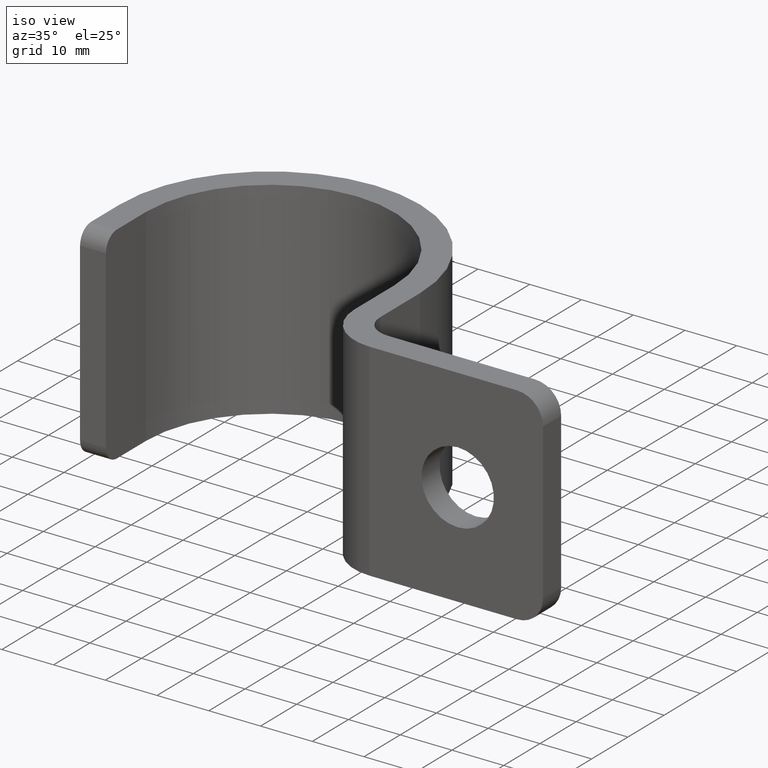
[diagram: clean part render]
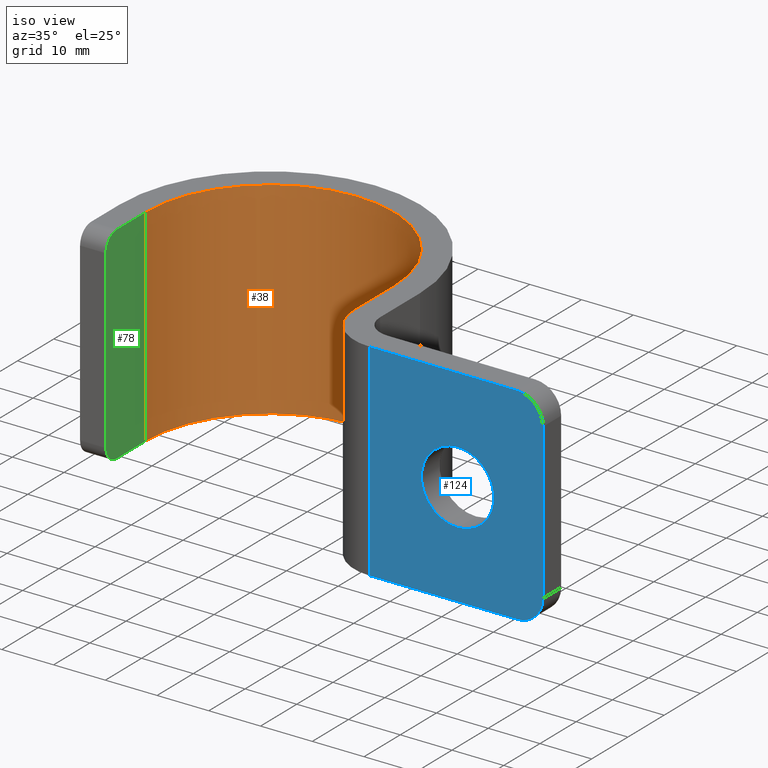
[diagram: same view with three faces highlighted in distinct colors, each labeled with its STEP entity id]
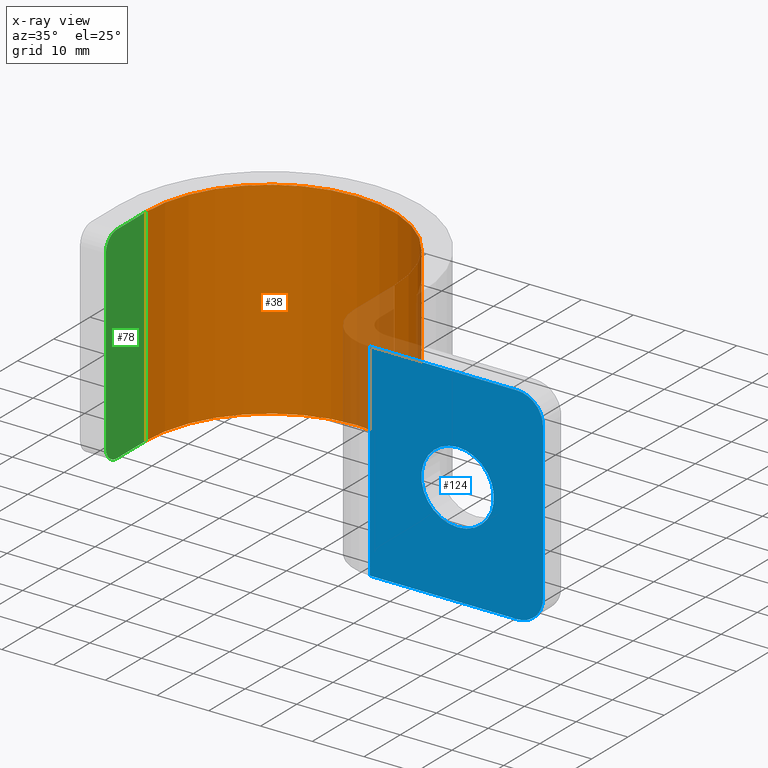
[diagram: x-ray of the same camera — body ghosted, the three highlighted faces saturated]
A machine part, iso view with three faces highlighted in distinct colors.
The next image is the same camera in x-ray (body ghosted, the three faces saturated) — at least one of them is partly hidden behind the body in this view.
Their STEP definitions:

[orange] entity #38 — the highlighted cylindrical surface (partial cylindrical patch) has radius 24 mm, axis along (0, -0, -1).
#5 = CARTESIAN_POINT ( 'NONE',  ( 4.440892098500626162E-13, 24.00000000000046541, -20.00000000000046185 ) ) ;
#29 = VERTEX_POINT ( 'NONE', #572 ) ;
#34 = VERTEX_POINT ( 'NONE', #757 ) ;
#38 = ADVANCED_FACE ( 'NONE', ( #682 ), #302, .F. ) ;
#39 = ORIENTED_EDGE ( 'NONE', *, *, #102, .F. ) ;
#60 = LINE ( 'NONE', #580, #457 ) ;
#102 = EDGE_CURVE ( 'NONE', #488, #34, #813, .T. ) ;
#105 = VECTOR ( 'NONE', #370, 1000.000000000000000 ) ;
#110 = CARTESIAN_POINT ( 'NONE',  ( 24.00000000000046541, 24.00000000000024158, 19.99999999999912959 ) ) ;
#238 = EDGE_LOOP ( 'NONE', ( #570, #39, #815, #398 ) ) ;
#255 = AXIS2_PLACEMENT_3D ( 'NONE', #389, #312, #648 ) ;
#302 = CYLINDRICAL_SURFACE ( 'NONE', #498, 24.00000000000002132 ) ;
#312 = DIRECTION ( 'NONE',  ( 8.326672684688671588E-17, -1.942890293094023453E-16, -1.000000000000000000 ) ) ;
#324 = DIRECTION ( 'NONE',  ( 8.326672684688671588E-17, -1.942890293094023453E-16, -1.000000000000000000 ) ) ;
#370 = DIRECTION ( 'NONE',  ( 8.326672684688671588E-17, -1.942890293094023453E-16, -1.000000000000000000 ) ) ;
#382 = CARTESIAN_POINT ( 'NONE',  ( -23.99999999999957723, 23.99999999999980105, 19.99999999999957367 ) ) ;
#389 = CARTESIAN_POINT ( 'NONE',  ( 4.440892098500626162E-13, 23.99999999999980105, 19.99999999999957367 ) ) ;
#398 = ORIENTED_EDGE ( 'NONE', *, *, #653, .T. ) ;
#412 = AXIS2_PLACEMENT_3D ( 'NONE', #5, #782, #716 ) ;
#457 = VECTOR ( 'NONE', #324, 1000.000000000000000 ) ;
#488 = VERTEX_POINT ( 'NONE', #824 ) ;
#498 = AXIS2_PLACEMENT_3D ( 'NONE', #631, #505, #830 ) ;
#505 = DIRECTION ( 'NONE',  ( 8.326672684688671588E-17, -1.942890293094023453E-16, -1.000000000000000000 ) ) ;
#516 = CIRCLE ( 'NONE', #255, 24.00000000000002132 ) ;
#570 = ORIENTED_EDGE ( 'NONE', *, *, #841, .T. ) ;
#572 = CARTESIAN_POINT ( 'NONE',  ( -23.99999999999957723, 23.99999999999980105, -20.00000000000090594 ) ) ;
#580 = CARTESIAN_POINT ( 'NONE',  ( -23.99999999999957723, 23.99999999999980105, 19.99999999999957367 ) ) ;
#603 = VERTEX_POINT ( 'NONE', #382 ) ;
#631 = CARTESIAN_POINT ( 'NONE',  ( 4.440892098500626162E-13, 23.99999999999980105, 19.99999999999957367 ) ) ;
#648 = DIRECTION ( 'NONE',  ( -1.000000000000000000, -1.445602896647337931E-16, 1.445602896647337931E-16 ) ) ;
#653 = EDGE_CURVE ( 'NONE', #603, #29, #60, .T. ) ;
#682 = FACE_OUTER_BOUND ( 'NONE', #238, .T. ) ;
#702 = EDGE_CURVE ( 'NONE', #603, #488, #516, .T. ) ;
#716 = DIRECTION ( 'NONE',  ( -1.000000000000000000, -1.445602896647337931E-16, 1.445602896647337931E-16 ) ) ;
#737 = CIRCLE ( 'NONE', #412, 24.00000000000002132 ) ;
#757 = CARTESIAN_POINT ( 'NONE',  ( 23.99999999999957723, 24.00000000000024158, -20.00000000000135003 ) ) ;
#782 = DIRECTION ( 'NONE',  ( 8.326672684688671588E-17, -1.942890293094023453E-16, -1.000000000000000000 ) ) ;
#813 = LINE ( 'NONE', #110, #105 ) ;
#815 = ORIENTED_EDGE ( 'NONE', *, *, #702, .F. ) ;
#824 = CARTESIAN_POINT ( 'NONE',  ( 24.00000000000046541, 24.00000000000024158, 19.99999999999912959 ) ) ;
#830 = DIRECTION ( 'NONE',  ( -1.000000000000000000, -1.445602896647337931E-16, 1.445602896647337931E-16 ) ) ;
#841 = EDGE_CURVE ( 'NONE', #29, #34, #737, .T. ) ;

[blue] entity #124 — the highlighted planar face has unit normal (-0, 1, 0).
#2 = DIRECTION ( 'NONE',  ( 8.326672684688684900E-16, -1.000000000000000000, -1.665334536937737029E-16 ) ) ;
#3 = VECTOR ( 'NONE', #221, 1000.000000000000000 ) ;
#13 = EDGE_CURVE ( 'NONE', #295, #152, #42, .T. ) ;
#14 = ORIENTED_EDGE ( 'NONE', *, *, #494, .T. ) ;
#30 = LINE ( 'NONE', #309, #396 ) ;
#42 = LINE ( 'NONE', #45, #86 ) ;
#45 = CARTESIAN_POINT ( 'NONE',  ( 34.00000000000025580, 2.999999999999891642, 19.99999999999912959 ) ) ;
#61 = CARTESIAN_POINT ( 'NONE',  ( 62.50000000000044054, 2.999999999999891642, 19.99999999999957367 ) ) ;
#66 = CARTESIAN_POINT ( 'NONE',  ( 51.00000000000059686, 3.000000000000114575, -7.000000000000443201 ) ) ;
#80 = ORIENTED_EDGE ( 'NONE', *, *, #13, .T. ) ;
#86 = VECTOR ( 'NONE', #493, 1000.000000000000000 ) ;
#91 = EDGE_CURVE ( 'NONE', #657, #339, #642, .T. ) ;
#123 = DIRECTION ( 'NONE',  ( 0.000000000000000000, 1.858632295689435856E-16, 1.000000000000000000 ) ) ;
#124 = ADVANCED_FACE ( 'NONE', ( #649, #574 ), #459, .F. ) ;
#128 = DIRECTION ( 'NONE',  ( 8.326672684688684900E-16, -1.000000000000000000, -1.665334536937737029E-16 ) ) ;
#136 = CARTESIAN_POINT ( 'NONE',  ( 62.50000000000044054, 2.999999999999669598, -15.00000000000101252 ) ) ;
#137 = EDGE_CURVE ( 'NONE', #569, #367, #751, .T. ) ;
#152 = VERTEX_POINT ( 'NONE', #392 ) ;
#171 = DIRECTION ( 'NONE',  ( 0.000000000000000000, 1.858632295689435856E-16, 1.000000000000000000 ) ) ;
#176 = AXIS2_PLACEMENT_3D ( 'NONE', #773, #770, #385 ) ;
#191 = CARTESIAN_POINT ( 'NONE',  ( 51.00000000000059686, 3.000000000000113687, -4.440892098500626162E-13 ) ) ;
#192 = DIRECTION ( 'NONE',  ( -1.000000000000000000, -1.040834085586083271E-15, 0.000000000000000000 ) ) ;
#197 = VECTOR ( 'NONE', #759, 1000.000000000000000 ) ;
#212 = CARTESIAN_POINT ( 'NONE',  ( 67.49999999999988631, 3.000000000000113687, 19.99999999999912959 ) ) ;
#214 = VERTEX_POINT ( 'NONE', #61 ) ;
#221 = DIRECTION ( 'NONE',  ( 8.326672684688671588E-17, -1.942890293094023453E-16, -1.000000000000000000 ) ) ;
#227 = CIRCLE ( 'NONE', #431, 7.000000000000000888 ) ;
#279 = CARTESIAN_POINT ( 'NONE',  ( 34.00000000000025580, 2.999999999999891642, 19.99999999999912959 ) ) ;
#295 = VERTEX_POINT ( 'NONE', #279 ) ;
#309 = CARTESIAN_POINT ( 'NONE',  ( 24.00000000000002132, 3.000000000000335731, 19.99999999999957367 ) ) ;
#329 = AXIS2_PLACEMENT_3D ( 'NONE', #136, #128, #192 ) ;
#339 = VERTEX_POINT ( 'NONE', #662 ) ;
#356 = ORIENTED_EDGE ( 'NONE', *, *, #91, .T. ) ;
#367 = VERTEX_POINT ( 'NONE', #545 ) ;
#385 = DIRECTION ( 'NONE',  ( -1.000000000000000000, -1.054711873393897727E-15, 1.387778780781444443E-16 ) ) ;
#392 = CARTESIAN_POINT ( 'NONE',  ( 34.00000000000025580, 2.999999999999891642, -20.00000000000046185 ) ) ;
#396 = VECTOR ( 'NONE', #802, 1000.000000000000000 ) ;
#401 = EDGE_LOOP ( 'NONE', ( #14, #409, #484, #732, #663, #80 ) ) ;
#409 = ORIENTED_EDGE ( 'NONE', *, *, #137, .T. ) ;
#431 = AXIS2_PLACEMENT_3D ( 'NONE', #191, #450, #123 ) ;
#435 = CARTESIAN_POINT ( 'NONE',  ( 24.00000000000046541, 2.999999999999669598, -20.00000000000046185 ) ) ;
#450 = DIRECTION ( 'NONE',  ( -5.551115123125790098E-17, 1.000000000000000000, 1.110223024625158020E-16 ) ) ;
#459 = PLANE ( 'NONE',  #176 ) ;
#467 = AXIS2_PLACEMENT_3D ( 'NONE', #561, #809, #171 ) ;
#477 = CARTESIAN_POINT ( 'NONE',  ( 62.50000000000000000, 2.999999999999891642, 14.99999999999968026 ) ) ;
#484 = ORIENTED_EDGE ( 'NONE', *, *, #785, .F. ) ;
#493 = DIRECTION ( 'NONE',  ( 8.326672684688671588E-17, -1.942890293094023453E-16, -1.000000000000000000 ) ) ;
#494 = EDGE_CURVE ( 'NONE', #152, #569, #818, .T. ) ;
#502 = CIRCLE ( 'NONE', #645, 5.000000000000004441 ) ;
#545 = CARTESIAN_POINT ( 'NONE',  ( 67.50000000000034106, 2.999999999999891642, -15.00000000000056843 ) ) ;
#547 = ORIENTED_EDGE ( 'NONE', *, *, #602, .T. ) ;
#561 = CARTESIAN_POINT ( 'NONE',  ( 51.00000000000059686, 3.000000000000113687, -4.440892098500626162E-13 ) ) ;
#562 = EDGE_CURVE ( 'NONE', #295, #214, #30, .T. ) ;
#569 = VERTEX_POINT ( 'NONE', #739 ) ;
#574 = FACE_OUTER_BOUND ( 'NONE', #401, .T. ) ;
#584 = LINE ( 'NONE', #212, #3 ) ;
#602 = EDGE_CURVE ( 'NONE', #339, #657, #227, .T. ) ;
#611 = EDGE_LOOP ( 'NONE', ( #547, #356 ) ) ;
#642 = CIRCLE ( 'NONE', #467, 7.000000000000000888 ) ;
#645 = AXIS2_PLACEMENT_3D ( 'NONE', #477, #2, #728 ) ;
#649 = FACE_BOUND ( 'NONE', #611, .T. ) ;
#657 = VERTEX_POINT ( 'NONE', #66 ) ;
#660 = VERTEX_POINT ( 'NONE', #769 ) ;
#662 = CARTESIAN_POINT ( 'NONE',  ( 51.00000000000059686, 3.000000000000115019, 6.999999999999556799 ) ) ;
#663 = ORIENTED_EDGE ( 'NONE', *, *, #562, .F. ) ;
#728 = DIRECTION ( 'NONE',  ( -1.000000000000000000, -1.040834085586083271E-15, 0.000000000000000000 ) ) ;
#732 = ORIENTED_EDGE ( 'NONE', *, *, #763, .T. ) ;
#739 = CARTESIAN_POINT ( 'NONE',  ( 62.50000000000000000, 3.000000000000335731, -20.00000000000001776 ) ) ;
#751 = CIRCLE ( 'NONE', #329, 5.000000000000004441 ) ;
#759 = DIRECTION ( 'NONE',  ( 1.000000000000000000, 1.054711873393897727E-15, -1.387778780781444443E-16 ) ) ;
#763 = EDGE_CURVE ( 'NONE', #660, #214, #502, .T. ) ;
#769 = CARTESIAN_POINT ( 'NONE',  ( 67.50000000000034106, 2.999999999999669598, 14.99999999999879208 ) ) ;
#770 = DIRECTION ( 'NONE',  ( -1.054711873393897727E-15, 1.000000000000000000, 1.665334536937737276E-16 ) ) ;
#773 = CARTESIAN_POINT ( 'NONE',  ( 24.00000000000002132, 3.000000000000335731, 19.99999999999957367 ) ) ;
#785 = EDGE_CURVE ( 'NONE', #660, #367, #584, .T. ) ;
#802 = DIRECTION ( 'NONE',  ( 1.000000000000000000, 1.054711873393897727E-15, -1.387778780781444443E-16 ) ) ;
#809 = DIRECTION ( 'NONE',  ( -5.551115123125790098E-17, 1.000000000000000000, 1.110223024625158020E-16 ) ) ;
#818 = LINE ( 'NONE', #435, #197 ) ;

[green] entity #78 — the highlighted planar face has unit normal (-1, -0, -0).
#9 = VERTEX_POINT ( 'NONE', #233 ) ;
#11 = DIRECTION ( 'NONE',  ( 1.000000000000000000, 1.665334536937733332E-16, -1.110223024625155554E-16 ) ) ;
#21 = CARTESIAN_POINT ( 'NONE',  ( -23.99999999999957723, 16.00000000000023448, 17.00000000000034817 ) ) ;
#29 = VERTEX_POINT ( 'NONE', #572 ) ;
#31 = DIRECTION ( 'NONE',  ( -8.326672684688671588E-17, 1.942890293094023453E-16, 1.000000000000000000 ) ) ;
#43 = ORIENTED_EDGE ( 'NONE', *, *, #653, .F. ) ;
#60 = LINE ( 'NONE', #580, #457 ) ;
#78 = ADVANCED_FACE ( 'NONE', ( #678 ), #99, .F. ) ;
#79 = ORIENTED_EDGE ( 'NONE', *, *, #333, .T. ) ;
#99 = PLANE ( 'NONE',  #208 ) ;
#114 = CARTESIAN_POINT ( 'NONE',  ( -24.00000000000002132, 12.99999999999945643, -16.99999999999990408 ) ) ;
#141 = AXIS2_PLACEMENT_3D ( 'NONE', #222, #11, #534 ) ;
#159 = DIRECTION ( 'NONE',  ( 0.000000000000000000, -7.401486830834370205E-14, 1.000000000000000000 ) ) ;
#206 = CARTESIAN_POINT ( 'NONE',  ( -24.00000000000002132, 2.999999999999891642, 20.00000000000001776 ) ) ;
#207 = ORIENTED_EDGE ( 'NONE', *, *, #814, .T. ) ;
#208 = AXIS2_PLACEMENT_3D ( 'NONE', #359, #615, #31 ) ;
#217 = EDGE_CURVE ( 'NONE', #9, #542, #712, .T. ) ;
#222 = CARTESIAN_POINT ( 'NONE',  ( -24.00000000000002132, 16.00000000000001421, -16.99999999999990408 ) ) ;
#233 = CARTESIAN_POINT ( 'NONE',  ( -23.99999999999957723, 12.99999999999945643, 17.00000000000123634 ) ) ;
#267 = EDGE_CURVE ( 'NONE', #278, #603, #598, .T. ) ;
#278 = VERTEX_POINT ( 'NONE', #734 ) ;
#290 = VECTOR ( 'NONE', #767, 1000.000000000000000 ) ;
#314 = CARTESIAN_POINT ( 'NONE',  ( -23.99999999999957723, 12.99999999999990052, 19.99999999999957367 ) ) ;
#324 = DIRECTION ( 'NONE',  ( 8.326672684688671588E-17, -1.942890293094023453E-16, -1.000000000000000000 ) ) ;
#333 = EDGE_CURVE ( 'NONE', #542, #746, #698, .T. ) ;
#334 = DIRECTION ( 'NONE',  ( -5.551115123125790098E-17, 1.000000000000000000, 1.110223024625158020E-16 ) ) ;
#336 = ORIENTED_EDGE ( 'NONE', *, *, #723, .T. ) ;
#348 = EDGE_LOOP ( 'NONE', ( #695, #79, #336, #43, #354, #207 ) ) ;
#354 = ORIENTED_EDGE ( 'NONE', *, *, #267, .F. ) ;
#359 = CARTESIAN_POINT ( 'NONE',  ( -24.00000000000002132, 2.999999999999891642, 20.00000000000001776 ) ) ;
#382 = CARTESIAN_POINT ( 'NONE',  ( -23.99999999999957723, 23.99999999999980105, 19.99999999999957367 ) ) ;
#391 = LINE ( 'NONE', #571, #720 ) ;
#457 = VECTOR ( 'NONE', #324, 1000.000000000000000 ) ;
#510 = DIRECTION ( 'NONE',  ( -5.551115123125790098E-17, 1.000000000000000000, 1.110223024625158020E-16 ) ) ;
#534 = DIRECTION ( 'NONE',  ( 0.000000000000000000, 0.000000000000000000, 1.000000000000000000 ) ) ;
#542 = VERTEX_POINT ( 'NONE', #114 ) ;
#552 = VECTOR ( 'NONE', #334, 1000.000000000000000 ) ;
#571 = CARTESIAN_POINT ( 'NONE',  ( -23.99999999999957723, 2.999999999999669598, -19.99999999999957367 ) ) ;
#572 = CARTESIAN_POINT ( 'NONE',  ( -23.99999999999957723, 23.99999999999980105, -20.00000000000090594 ) ) ;
#580 = CARTESIAN_POINT ( 'NONE',  ( -23.99999999999957723, 23.99999999999980105, 19.99999999999957367 ) ) ;
#598 = LINE ( 'NONE', #206, #552 ) ;
#603 = VERTEX_POINT ( 'NONE', #382 ) ;
#615 = DIRECTION ( 'NONE',  ( -1.000000000000000000, -1.665334536937733825E-16, -8.326672684688667890E-17 ) ) ;
#653 = EDGE_CURVE ( 'NONE', #603, #29, #60, .T. ) ;
#661 = DIRECTION ( 'NONE',  ( 1.000000000000000000, 1.665334536937733332E-16, -1.110223024625155554E-16 ) ) ;
#678 = FACE_OUTER_BOUND ( 'NONE', #348, .T. ) ;
#695 = ORIENTED_EDGE ( 'NONE', *, *, #217, .T. ) ;
#698 = CIRCLE ( 'NONE', #141, 3.000000000000000888 ) ;
#712 = LINE ( 'NONE', #314, #290 ) ;
#714 = CARTESIAN_POINT ( 'NONE',  ( -23.99999999999957723, 15.99999999999957012, -20.00000000000135003 ) ) ;
#720 = VECTOR ( 'NONE', #510, 1000.000000000000000 ) ;
#723 = EDGE_CURVE ( 'NONE', #746, #29, #391, .T. ) ;
#734 = CARTESIAN_POINT ( 'NONE',  ( -23.99999999999957723, 16.00000000000001421, 20.00000000000046185 ) ) ;
#746 = VERTEX_POINT ( 'NONE', #714 ) ;
#752 = AXIS2_PLACEMENT_3D ( 'NONE', #21, #661, #159 ) ;
#767 = DIRECTION ( 'NONE',  ( 8.326672684688671588E-17, -1.942890293094023453E-16, -1.000000000000000000 ) ) ;
#789 = CIRCLE ( 'NONE', #752, 3.000000000000002665 ) ;
#814 = EDGE_CURVE ( 'NONE', #278, #9, #789, .T. ) ;